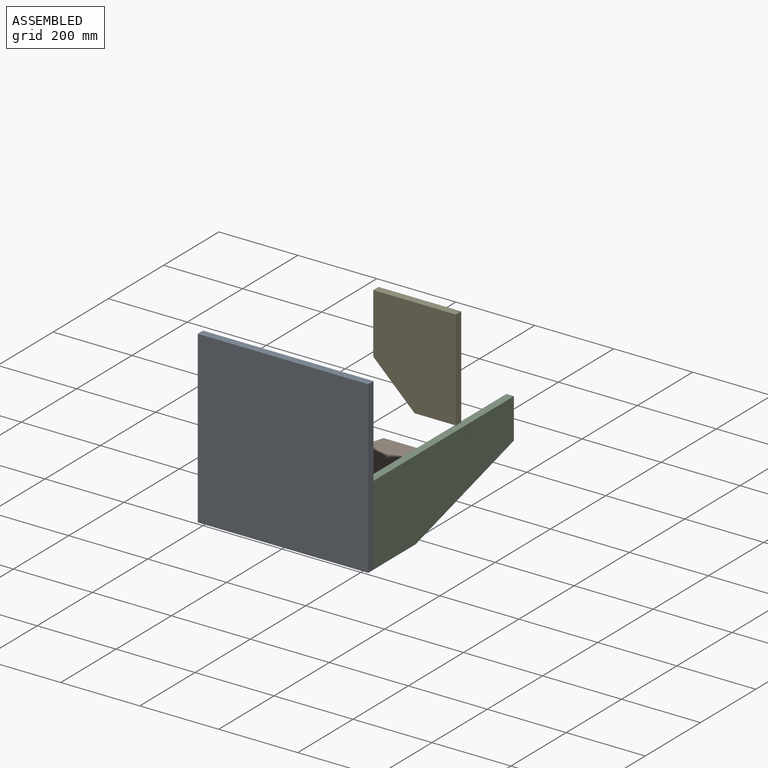
[diagram: assembled view]
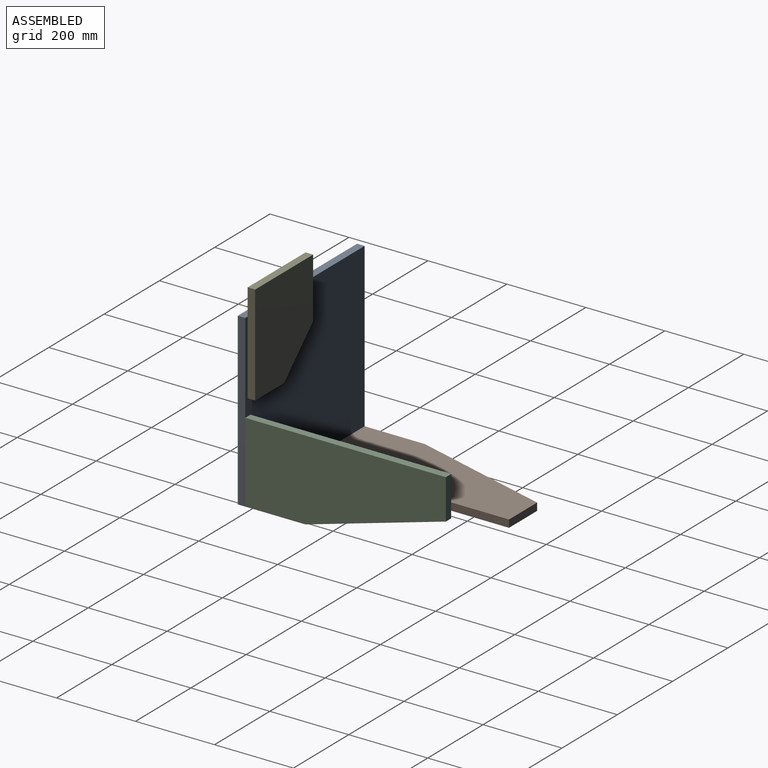
[diagram: assembled view, second angle]
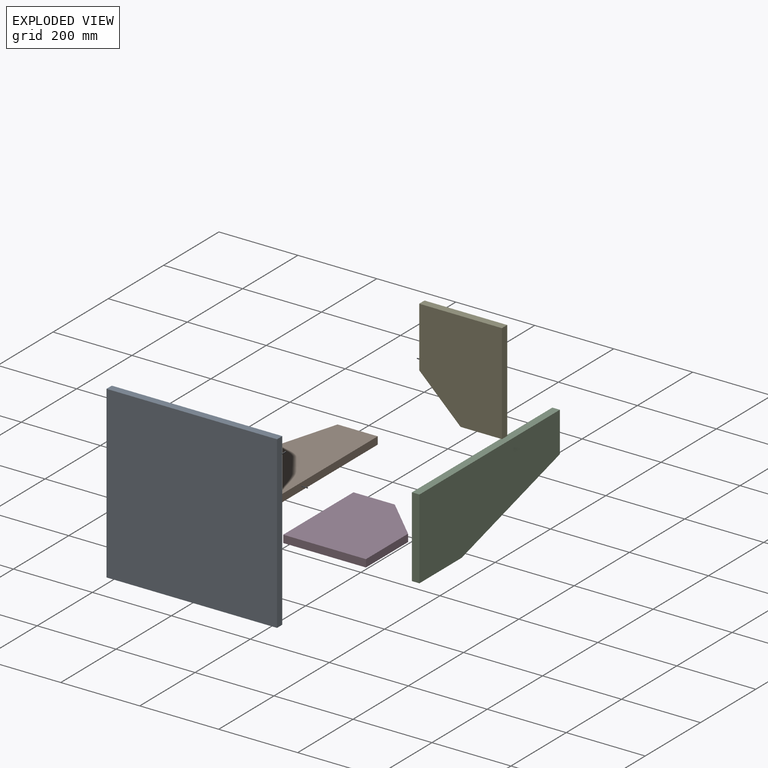
[diagram: exploded view]
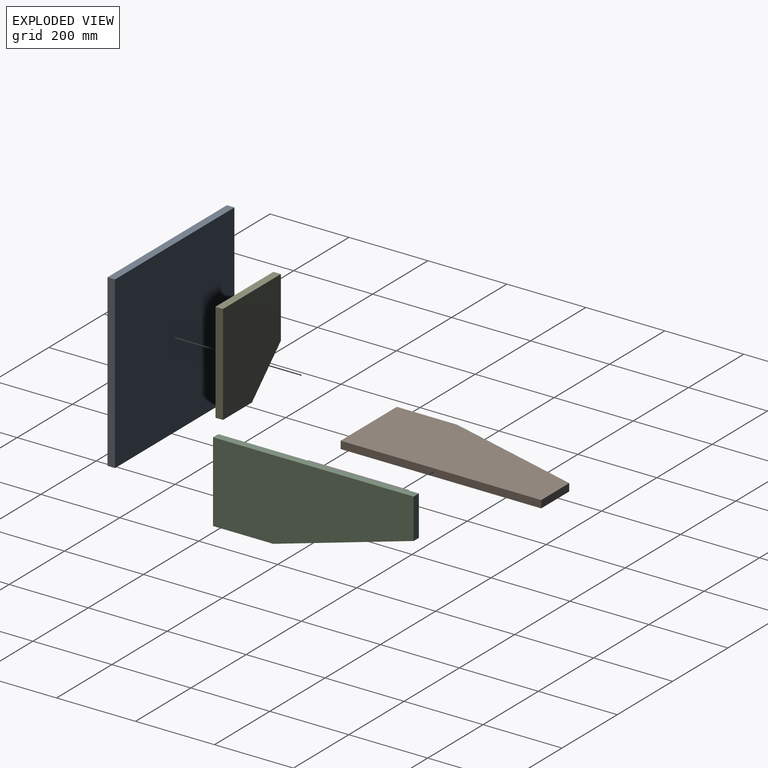
[diagram: exploded view, second angle]
ASSEMBLY  parts=5 mates=9
PART A: 6 faces, bbox 431.8x19.1x431.8 mm
  f0: plane 431.8x19.05mm, normal (-1,0,0), area 8225.8mm2, adj f1,f3,f4,f5
  f1: plane 431.8x19.05mm, normal (0,0,-1), area 8225.8mm2, adj f0,f2,f4,f5
  f2: plane 431.8x19.05mm, normal (1,0,0), area 8225.8mm2, adj f1,f3,f4,f5
  f3: plane 431.8x19.05mm, normal (0,0,1), area 8225.8mm2, adj f0,f2,f4,f5
  f4: plane 431.8x431.8mm, normal (0,-1,0), area 186451.2mm2, adj f0,f1,f2,f3
  f5: plane 431.8x431.8mm, normal (0,1,0), area 186451.2mm2, adj f0,f1,f2,f3
PART B: 7 faces, bbox 203.2x19.1x508 mm
  f0: plane 152.4x19.05mm, normal (-1,0,0), area 2903.2mm2, adj f2,f3,f5,f6
  f1: plane 101.6x19.05mm, normal (0,0,-1), area 1935.5mm2, adj f2,f3,f4,f6
  f2: plane 508x203.2mm, normal (0,-1,0), area 85161.1mm2, adj f0,f1,f4,f5,f6
  f3: plane 508x203.2mm, normal (0,1,0), area 85161.1mm2, adj f0,f1,f4,f5,f6
  f4: plane 508x19.05mm, normal (1,0,0), area 9677.4mm2, adj f1,f2,f3,f5
  f5: plane 203.2x19.05mm, normal (0,0,1), area 3871mm2, adj f0,f2,f3,f4
  f6: plane 355.6x101.6mm, normal (-0.96,0,-0.27), area 7045.3mm2, adj f0,f1,f2,f3
PART C: same geometry as B
PART D: 7 faces, bbox 209.6x19.1x254 mm
  f0: plane 152.4x19.05mm, normal (-1,0,0), area 2903.2mm2, adj f2,f3,f5,f6
  f1: plane 104.78x19.05mm, normal (0,0,-1), area 1996mm2, adj f2,f3,f4,f6
  f2: plane 254x209.55mm, normal (0,-1,0), area 47903.1mm2, adj f0,f1,f4,f5,f6
  f3: plane 254x209.55mm, normal (0,1,0), area 47903.1mm2, adj f0,f1,f4,f5,f6
  f4: plane 254x19.05mm, normal (1,0,0), area 4838.7mm2, adj f1,f2,f3,f5
  f5: plane 209.55x19.05mm, normal (0,0,1), area 3991.9mm2, adj f0,f2,f3,f4
  f6: plane 104.78x101.6mm, normal (-0.7,0,-0.72), area 2780.3mm2, adj f0,f1,f2,f3
PART E: same geometry as D
PLACE A at identity fixed
PLACE B rot(axis=(1,0,0),90deg) t=(0,508,19.05)mm
PLACE C rot(axis=(0.58,-0.58,0.58),120deg) t=(412.75,508,0)mm
PLACE D rot(axis=(0,-0.71,0.71),180deg) t=(412.75,254,0)mm
PLACE E t=(359.61,121.32,327.72)mm
MATE planar A.f5 <-> B.f5  axis (0,1,0) through (215.9,0,0)mm
MATE planar B.f2 <-> A.f1  axis (0,0,-1) through (101.6,0,0)mm
MATE planar C.f5 <-> A.f5  axis (0,-1,0) through (422.28,0,101.6)mm
MATE planar C.f2 <-> A.f2  axis (1,0,0) through (431.8,0,101.6)mm
MATE planar C.f0 <-> A.f1  axis (0,0,-1) through (422.28,76.2,0)mm
MATE planar D.f5 <-> A.f5  axis (0,-1,0) through (307.98,0,9.53)mm
MATE planar D.f3 <-> A.f1  axis (0,0,-1) through (300.21,116.65,0)mm
MATE planar D.f4 <-> B.f4  axis (-1,0,0) through (203.2,254,9.53)mm
MATE planar B.f0 <-> A.f0  axis (-1,0,0) through (0,0,9.52)mm
